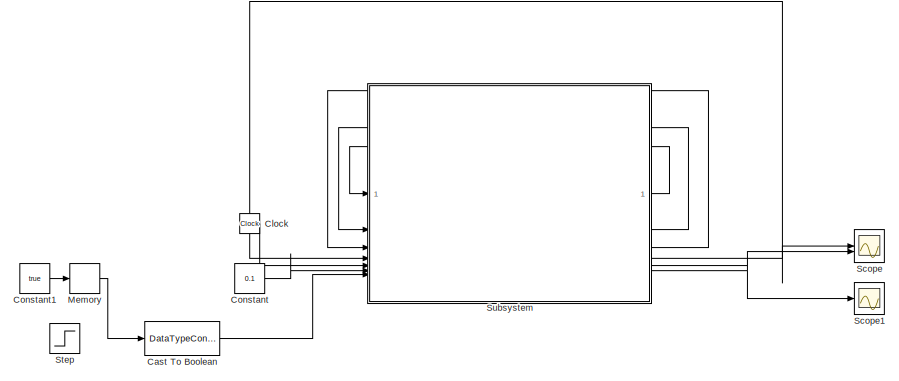
[diagram: root canvas - part 1/2, top left region]
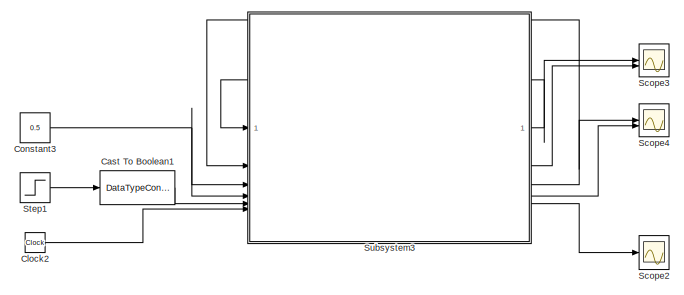
[diagram: root canvas - part 2/2, bottom right region]
MODEL slx_9652783b0291
KIND model
CONFIG AbsTol = auto
CONFIG EnableMultiTasking = off
CONFIG FixedStep = auto
CONFIG MaxStep = auto
CONFIG MinStep = auto
CONFIG RelTol = 1e-3
CONFIG SampleTimeConstraint = Unconstrained
CONFIG SolverName = VariableStepAuto
CONFIG StartTime = 0.0
CONFIG StopTime = 30
BLOCK [DataTypeConversion] Cast To Boolean
  Commented = on
  OutDataTypeStr = boolean
  RndMeth = Floor
  SaturateOnIntegerOverflow = off
BLOCK [DataTypeConversion] Cast To Boolean1
  OutDataTypeStr = boolean
  RndMeth = Floor
  SaturateOnIntegerOverflow = off
BLOCK [Clock] Clock
  Commented = on
BLOCK [Clock] Clock2
BLOCK [Constant] Constant
  Commented = on
  Value = 0.1
BLOCK [Constant] Constant1
  Commented = on
  Value = true
BLOCK [Constant] Constant3
  Value = 0.5
BLOCK [Memory] Memory
  Commented = on
  InitialCondition = false
BLOCK [Scope] Scope
  Commented = on
  Floating = off
  NumInputPorts = 2
  ScopeSpecificationString = Simulink.scopes.TimeScopeBlockCfg('CurrentConfiguration', extmgr.ConfigurationSet(extmgr.Configuration('Core','General UI',true),extmgr.Configuration('Core','Source UI',true),extmgr.Configuration('Sources','WiredSimulink',true),extmgr.Configuration('Visuals','Time Domain',true,'SerializedDisplays',{struct('MinYLimReal','-0.5','MaxYLimReal','4.5','YLabelReal','','MinYLimMag','0.00000','MaxYLimMag',...<+1482ch>
BLOCK [Scope] Scope1
  Commented = on
  Floating = off
  NumInputPorts = 1
  ScopeSpecificationString = Simulink.scopes.TimeScopeBlockCfg('CurrentConfiguration', extmgr.ConfigurationSet(extmgr.Configuration('Core','General UI',true),extmgr.Configuration('Core','Source UI',true),extmgr.Configuration('Sources','WiredSimulink',true,'DataLoggingVariableName','ScopeData1'),extmgr.Configuration('Visuals','Time Domain',true,'SerializedDisplays',{struct('MinYLimReal','-1.00000','MaxYLimReal','1.00000','YLab...<+1488ch>
BLOCK [Scope] Scope2
  Floating = off
  NumInputPorts = 1
  ScopeSpecificationString = Simulink.scopes.TimeScopeBlockCfg('CurrentConfiguration', extmgr.ConfigurationSet(extmgr.Configuration('Core','General UI',true),extmgr.Configuration('Core','Source UI',true),extmgr.Configuration('Sources','WiredSimulink',true,'DataLoggingVariableName','ScopeData2'),extmgr.Configuration('Visuals','Time Domain',true,'SerializedDisplays',{struct('MinYLimReal','-0.125','MaxYLimReal','1.125','YLabelRe...<+1474ch>
BLOCK [Scope] Scope3
  Floating = off
  NumInputPorts = 2
  ScopeSpecificationString = Simulink.scopes.TimeScopeBlockCfg('CurrentConfiguration', extmgr.ConfigurationSet(extmgr.Configuration('Core','General UI',true),extmgr.Configuration('Core','Source UI',true),extmgr.Configuration('Sources','WiredSimulink',true,'DataLoggingVariableName','ScopeData3'),extmgr.Configuration('Visuals','Time Domain',true,'SerializedDisplays',{struct('MinYLimReal','-1.06109','MaxYLimReal','4.56234','YLab...<+1542ch>
BLOCK [Scope] Scope4
  Floating = off
  NumInputPorts = 2
  ScopeSpecificationString = Simulink.scopes.TimeScopeBlockCfg('CurrentConfiguration', extmgr.ConfigurationSet(extmgr.Configuration('Core','General UI',true),extmgr.Configuration('Core','Source UI',true),extmgr.Configuration('Sources','WiredSimulink',true,'DataLoggingVariableName','ScopeData4'),extmgr.Configuration('Visuals','Time Domain',true,'SerializedDisplays',{struct('MinYLimReal','-1.00000','MaxYLimReal','1.00000','YLab...<+1543ch>
BLOCK [Step] Step
  Commented = on
  SampleTime = 0
BLOCK [Step] Step1
  SampleTime = 0
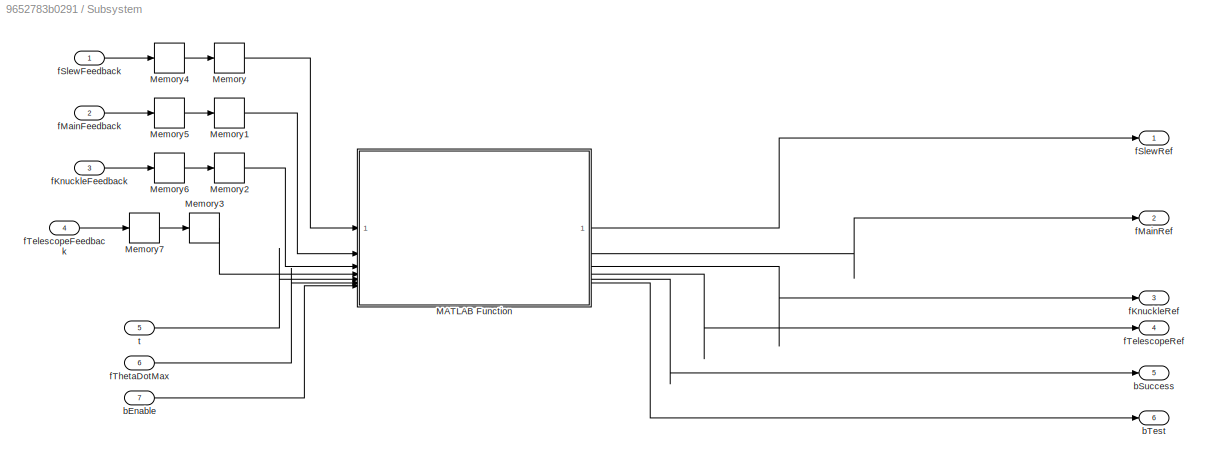
BLOCK [SubSystem] Subsystem
  Commented = on
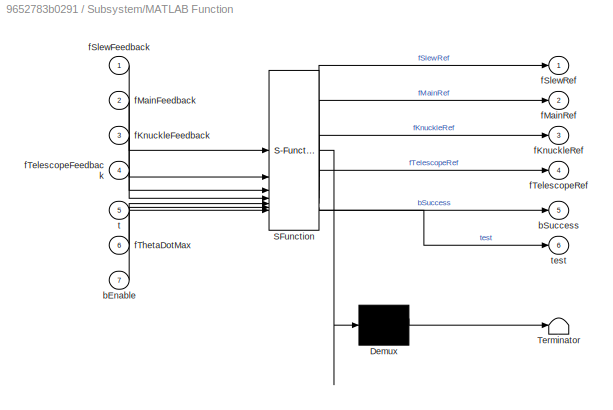
BLOCK [SubSystem] Subsystem/MATLAB Function
  ErrorFcn = Stateflow.Translate.translate
  PermitHierarchicalResolution = ExplicitOnly
  SFBlockType = MATLAB Function
  TreatAsAtomicUnit = on
BLOCK [Demux] Subsystem/MATLAB Function/ Demux 
  Outputs = 1
BLOCK [S-Function] Subsystem/MATLAB Function/ SFunction 
  EnableBusSupport = on
  FunctionName = sf_sfun
  PortCounts = [7 7]
  SFcnIsStateOwnerBlock = off
  SFunctionDeploymentMode = off
  Tag = Stateflow S-Function 1
BLOCK [Terminator] Subsystem/MATLAB Function/ Terminator 
BLOCK [Inport] Subsystem/MATLAB Function/bEnable
  Port = 7
BLOCK [Outport] Subsystem/MATLAB Function/bSuccess
  Port = 5
BLOCK [Inport] Subsystem/MATLAB Function/fKnuckleFeedback
  Port = 3
BLOCK [Outport] Subsystem/MATLAB Function/fKnuckleRef
  Port = 3
BLOCK [Inport] Subsystem/MATLAB Function/fMainFeedback
  Port = 2
BLOCK [Outport] Subsystem/MATLAB Function/fMainRef
  Port = 2
BLOCK [Inport] Subsystem/MATLAB Function/fSlewFeedback
BLOCK [Outport] Subsystem/MATLAB Function/fSlewRef
BLOCK [Inport] Subsystem/MATLAB Function/fTelescopeFeedback
  Port = 4
BLOCK [Outport] Subsystem/MATLAB Function/fTelescopeRef
  Port = 4
BLOCK [Inport] Subsystem/MATLAB Function/fThetaDotMax
  Port = 6
BLOCK [Inport] Subsystem/MATLAB Function/t
  Port = 5
BLOCK [Outport] Subsystem/MATLAB Function/test
  Port = 6
BLOCK [Memory] Subsystem/Memory
  InitialCondition = thetaList0(1)
BLOCK [Memory] Subsystem/Memory1
  InitialCondition = thetaList0(2)
BLOCK [Memory] Subsystem/Memory2
  InitialCondition = thetaList0(3)
BLOCK [Memory] Subsystem/Memory3
  InitialCondition = telescope0
BLOCK [Memory] Subsystem/Memory4
  InitialCondition = thetaList0(1)
BLOCK [Memory] Subsystem/Memory5
  InitialCondition = thetaList0(2)
BLOCK [Memory] Subsystem/Memory6
  InitialCondition = thetaList0(3)
BLOCK [Memory] Subsystem/Memory7
  InitialCondition = telescope0
BLOCK [Inport] Subsystem/bEnable
  Port = 7
BLOCK [Outport] Subsystem/bSuccess
  Port = 5
BLOCK [Outport] Subsystem/bTest
  Port = 6
BLOCK [Inport] Subsystem/fKnuckleFeedback
  Port = 3
BLOCK [Outport] Subsystem/fKnuckleRef
  Port = 3
BLOCK [Inport] Subsystem/fMainFeedback
  Port = 2
BLOCK [Outport] Subsystem/fMainRef
  Port = 2
BLOCK [Inport] Subsystem/fSlewFeedback
BLOCK [Outport] Subsystem/fSlewRef
BLOCK [Inport] Subsystem/fTelescopeFeedback
  Port = 4
BLOCK [Outport] Subsystem/fTelescopeRef
  Port = 4
BLOCK [Inport] Subsystem/fThetaDotMax
  Port = 6
BLOCK [Inport] Subsystem/t
  Port = 5
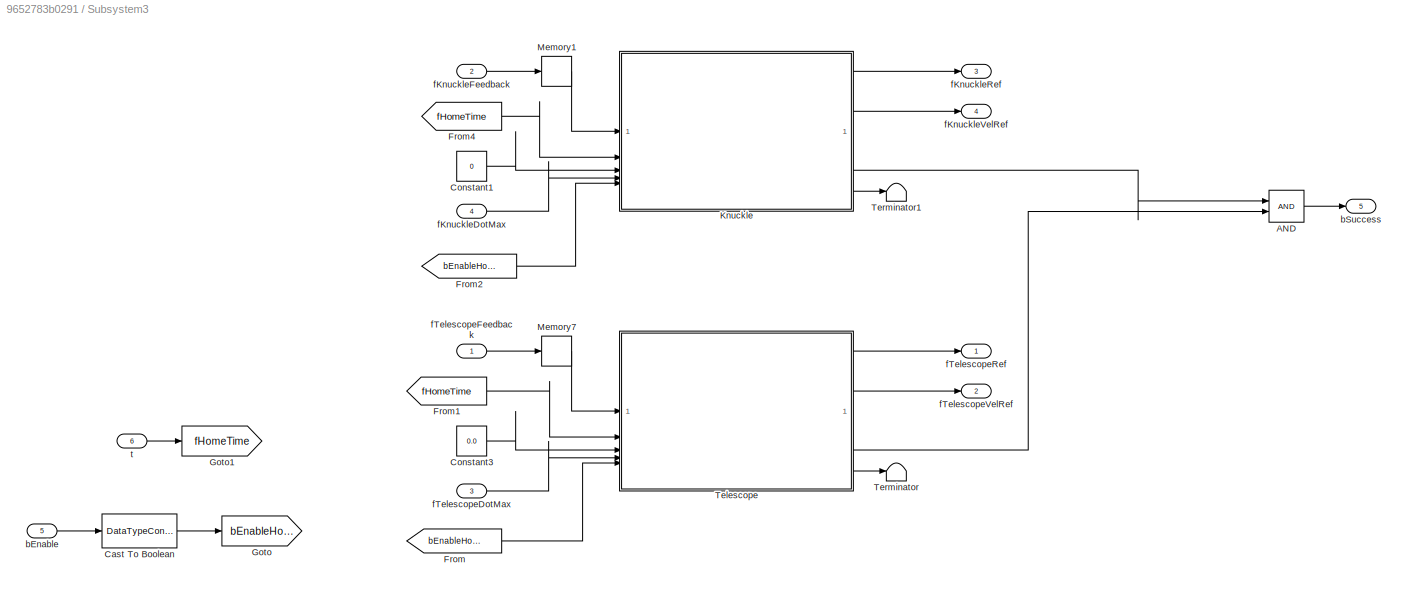
BLOCK [SubSystem] Subsystem3
BLOCK [Logic] Subsystem3/AND
  AllPortsSameDT = off
  IconShape = distinctive
  OutDataTypeStr = boolean
BLOCK [DataTypeConversion] Subsystem3/Cast To Boolean
  OutDataTypeStr = boolean
  RndMeth = Floor
  SaturateOnIntegerOverflow = off
BLOCK [Constant] Subsystem3/Constant1
  Value = 0
BLOCK [Constant] Subsystem3/Constant3
  Value = 0.0
BLOCK [From] Subsystem3/From
  GotoTag = bEnableHome
BLOCK [From] Subsystem3/From1
  GotoTag = fHomeTime
BLOCK [From] Subsystem3/From2
  GotoTag = bEnableHome
BLOCK [From] Subsystem3/From4
  GotoTag = fHomeTime
BLOCK [Goto] Subsystem3/Goto
  GotoTag = bEnableHome
BLOCK [Goto] Subsystem3/Goto1
  GotoTag = fHomeTime
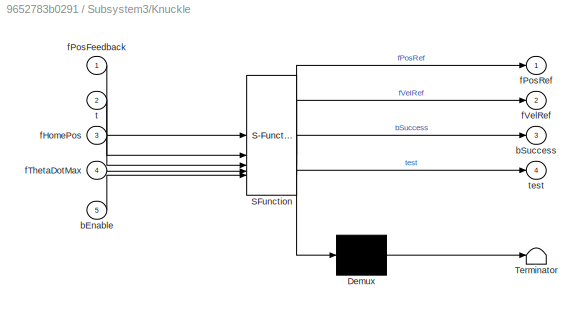
BLOCK [SubSystem] Subsystem3/Knuckle
  ErrorFcn = Stateflow.Translate.translate
  PermitHierarchicalResolution = ExplicitOnly
  SFBlockType = MATLAB Function
  TreatAsAtomicUnit = on
BLOCK [Demux] Subsystem3/Knuckle/ Demux 
  Outputs = 1
BLOCK [S-Function] Subsystem3/Knuckle/ SFunction 
  EnableBusSupport = on
  FunctionName = sf_sfun
  PortCounts = [5 5]
  SFcnIsStateOwnerBlock = off
  SFunctionDeploymentMode = off
  Tag = Stateflow S-Function 2
BLOCK [Terminator] Subsystem3/Knuckle/ Terminator 
BLOCK [Inport] Subsystem3/Knuckle/bEnable
  Port = 5
BLOCK [Outport] Subsystem3/Knuckle/bSuccess
  Port = 3
BLOCK [Inport] Subsystem3/Knuckle/fHomePos
  Port = 3
BLOCK [Inport] Subsystem3/Knuckle/fPosFeedback
BLOCK [Outport] Subsystem3/Knuckle/fPosRef
BLOCK [Inport] Subsystem3/Knuckle/fThetaDotMax
  Port = 4
BLOCK [Outport] Subsystem3/Knuckle/fVelRef
  Port = 2
BLOCK [Inport] Subsystem3/Knuckle/t
  Port = 2
BLOCK [Outport] Subsystem3/Knuckle/test
  Port = 4
BLOCK [Memory] Subsystem3/Memory1
  InitialCondition = thetaList0(3)
BLOCK [Memory] Subsystem3/Memory7
  InitialCondition = telescope0
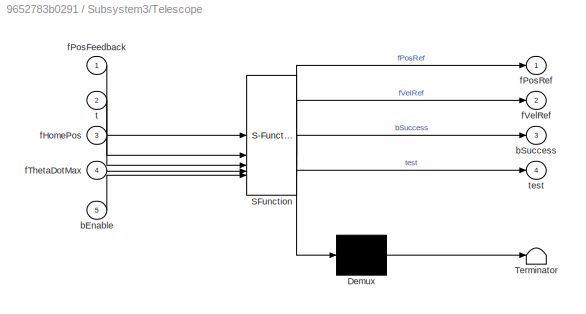
BLOCK [SubSystem] Subsystem3/Telescope
  ErrorFcn = Stateflow.Translate.translate
  PermitHierarchicalResolution = ExplicitOnly
  SFBlockType = MATLAB Function
  TreatAsAtomicUnit = on
BLOCK [Demux] Subsystem3/Telescope/ Demux 
  Outputs = 1
BLOCK [S-Function] Subsystem3/Telescope/ SFunction 
  EnableBusSupport = on
  FunctionName = sf_sfun
  PortCounts = [5 5]
  SFcnIsStateOwnerBlock = off
  SFunctionDeploymentMode = off
  Tag = Stateflow S-Function 5
BLOCK [Terminator] Subsystem3/Telescope/ Terminator 
BLOCK [Inport] Subsystem3/Telescope/bEnable
  Port = 5
BLOCK [Outport] Subsystem3/Telescope/bSuccess
  Port = 3
BLOCK [Inport] Subsystem3/Telescope/fHomePos
  Port = 3
BLOCK [Inport] Subsystem3/Telescope/fPosFeedback
BLOCK [Outport] Subsystem3/Telescope/fPosRef
BLOCK [Inport] Subsystem3/Telescope/fThetaDotMax
  Port = 4
BLOCK [Outport] Subsystem3/Telescope/fVelRef
  Port = 2
BLOCK [Inport] Subsystem3/Telescope/t
  Port = 2
BLOCK [Outport] Subsystem3/Telescope/test
  Port = 4
BLOCK [Terminator] Subsystem3/Terminator
BLOCK [Terminator] Subsystem3/Terminator1
BLOCK [Inport] Subsystem3/bEnable
  Port = 5
BLOCK [Outport] Subsystem3/bSuccess
  Port = 5
BLOCK [Inport] Subsystem3/fKnuckleDotMax
  Port = 4
BLOCK [Inport] Subsystem3/fKnuckleFeedback
  Port = 2
BLOCK [Outport] Subsystem3/fKnuckleRef
  Port = 3
BLOCK [Outport] Subsystem3/fKnuckleVelRef
  Port = 4
BLOCK [Inport] Subsystem3/fTelescopeDotMax
  Port = 3
BLOCK [Inport] Subsystem3/fTelescopeFeedback
BLOCK [Outport] Subsystem3/fTelescopeRef
BLOCK [Outport] Subsystem3/fTelescopeVelRef
  Port = 2
BLOCK [Inport] Subsystem3/t
  Port = 6
LINE Cast To Boolean1:1 -> Subsystem3:5
LINE Cast To Boolean:1 -> Subsystem:7
LINE Clock2:1 -> Subsystem3:6
LINE Clock:1 -> Subsystem:5
LINE Constant1:1 -> Memory:1
NET Constant3:1 -> Subsystem3:3, Subsystem3:4
LINE Constant:1 -> Subsystem:6
LINE Memory:1 -> Cast To Boolean:1
LINE Step1:1 -> Cast To Boolean1:1
LINE Subsystem/MATLAB Function:1 -> Subsystem/fSlewRef:1
LINE Subsystem/MATLAB Function:2 -> Subsystem/fMainRef:1
LINE Subsystem/MATLAB Function:3 -> Subsystem/fKnuckleRef:1
LINE Subsystem/MATLAB Function:4 -> Subsystem/fTelescopeRef:1
LINE Subsystem/MATLAB Function:5 -> Subsystem/bSuccess:1
LINE Subsystem/MATLAB Function:6 -> Subsystem/bTest:1
LINE Subsystem/Memory1:1 -> Subsystem/MATLAB Function:2
LINE Subsystem/Memory2:1 -> Subsystem/MATLAB Function:3
LINE Subsystem/Memory3:1 -> Subsystem/MATLAB Function:4
LINE Subsystem/Memory4:1 -> Subsystem/Memory:1
LINE Subsystem/Memory5:1 -> Subsystem/Memory1:1
LINE Subsystem/Memory6:1 -> Subsystem/Memory2:1
LINE Subsystem/Memory7:1 -> Subsystem/Memory3:1
LINE Subsystem/Memory:1 -> Subsystem/MATLAB Function:1
LINE Subsystem/bEnable:1 -> Subsystem/MATLAB Function:7
LINE Subsystem/fKnuckleFeedback:1 -> Subsystem/Memory6:1
LINE Subsystem/fMainFeedback:1 -> Subsystem/Memory5:1
LINE Subsystem/fSlewFeedback:1 -> Subsystem/Memory4:1
LINE Subsystem/fTelescopeFeedback:1 -> Subsystem/Memory7:1
LINE Subsystem/fThetaDotMax:1 -> Subsystem/MATLAB Function:6
LINE Subsystem/t:1 -> Subsystem/MATLAB Function:5
LINE Subsystem3/AND:1 -> Subsystem3/bSuccess:1
LINE Subsystem3/Cast To Boolean:1 -> Subsystem3/Goto:1
LINE Subsystem3/Constant1:1 -> Subsystem3/Knuckle:3
LINE Subsystem3/Constant3:1 -> Subsystem3/Telescope:3
LINE Subsystem3/From1:1 -> Subsystem3/Telescope:2
LINE Subsystem3/From2:1 -> Subsystem3/Knuckle:5
LINE Subsystem3/From4:1 -> Subsystem3/Knuckle:2
LINE Subsystem3/From:1 -> Subsystem3/Telescope:5
LINE Subsystem3/Knuckle:1 -> Subsystem3/fKnuckleRef:1
LINE Subsystem3/Knuckle:2 -> Subsystem3/fKnuckleVelRef:1
LINE Subsystem3/Knuckle:3 -> Subsystem3/AND:1
LINE Subsystem3/Knuckle:4 -> Subsystem3/Terminator1:1
LINE Subsystem3/Memory1:1 -> Subsystem3/Knuckle:1
LINE Subsystem3/Memory7:1 -> Subsystem3/Telescope:1
LINE Subsystem3/Telescope:1 -> Subsystem3/fTelescopeRef:1
LINE Subsystem3/Telescope:2 -> Subsystem3/fTelescopeVelRef:1
LINE Subsystem3/Telescope:3 -> Subsystem3/AND:2
LINE Subsystem3/Telescope:4 -> Subsystem3/Terminator:1
LINE Subsystem3/bEnable:1 -> Subsystem3/Cast To Boolean:1
LINE Subsystem3/fKnuckleDotMax:1 -> Subsystem3/Knuckle:4
LINE Subsystem3/fKnuckleFeedback:1 -> Subsystem3/Memory1:1
LINE Subsystem3/fTelescopeDotMax:1 -> Subsystem3/Telescope:4
LINE Subsystem3/fTelescopeFeedback:1 -> Subsystem3/Memory7:1
LINE Subsystem3/t:1 -> Subsystem3/Goto1:1
NET Subsystem3:1 -> Scope3:1, Subsystem3:1
LINE Subsystem3:2 -> Scope3:2
NET Subsystem3:3 -> Scope4:1, Subsystem3:2
LINE Subsystem3:4 -> Scope4:2
LINE Subsystem3:5 -> Scope2:1
LINE Subsystem:1 -> Subsystem:1
LINE Subsystem:2 -> Subsystem:2
LINE Subsystem:3 -> Subsystem:3
NET Subsystem:4 -> Scope:1, Subsystem:4
LINE Subsystem:5 -> Scope:2
LINE Subsystem:6 -> Scope1:1
note: NET lines group one-source signal fan-out (src -> all destinations, sorted); 1:1 wires keep LINE
CHART Subsystem/MATLAB Function states=1 transitions=1
  STATE_LABEL 'eML_blk_kernel()'
  STATE_LABEL 'SCRIPT:\nfunction [fSlewRef, fMainRef, fKnuckleRef, fTelescopeRef, bSuccess, test] = ...\n                    goHome(fSlewFeedback, ...\n                    fMainFeedback, ...\n                    fKnuckleFeedback, ...\n                    fTelescopeFeedback, ...\n                    t,...\n                    fThetaDotMax, ...\n                    bEnable)\nbSuccess = false;\n\n\n%fSlewRef = 0;\n%fMainRef = 0...<+707ch>'
CHART Subsystem3/Knuckle states=1 transitions=1
  STATE_LABEL 'eML_blk_kernel()'
  STATE_LABEL 'SCRIPT:\nfunction [fPosRef, fVelRef, bSuccess, test] = goHomeKnuckle(fPosFeedback, ...\n    t,...\n    fHomePos,...\n    fThetaDotMax, ...\n    bEnable)\n\nbSuccess = false;\nfPosRef = 0.0;\nfVelRef = 0.0;\ntest = false;\n\n\n\n\n[fPosRef, fVelRef, bSuccess, test] = cosinePositionGenerator(fPosFeedback, fHomePos, fThetaDotMax, t, bEnable);\n\n\n\nend\n'
CHART Subsystem3/Telescope states=1 transitions=1
  STATE_LABEL 'eML_blk_kernel()'
  STATE_LABEL 'SCRIPT:\nfunction [fPosRef, fVelRef, bSuccess, test] = goHomeTelescope(fPosFeedback, ...\n    t,...\n    fHomePos,...\n    fThetaDotMax, ...\n    bEnable)\n\nbSuccess = false;\nfPosRef = 0.0;\nfVelRef = 0.0;\ntest = false;\n\n\n[fPosRef, fVelRef, bSuccess, test] = cosinePositionGenerator(fPosFeedback, fHomePos, fThetaDotMax, t, bEnable);\n\n\n\nend\n'
CHART  states=0 transitions=0
CHART  states=0 transitions=0
CHART  states=0 transitions=0
